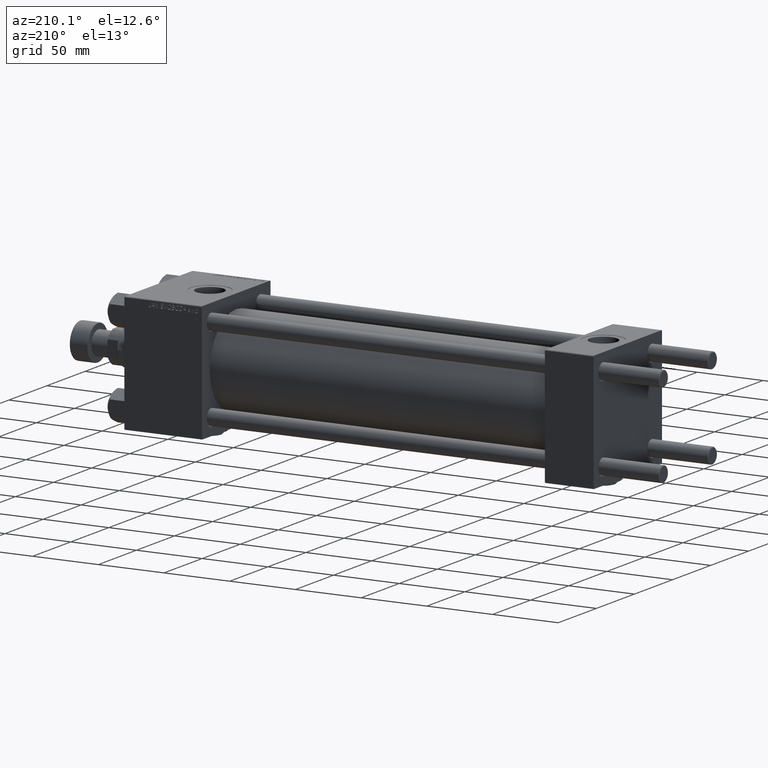
[diagram: clean part render]
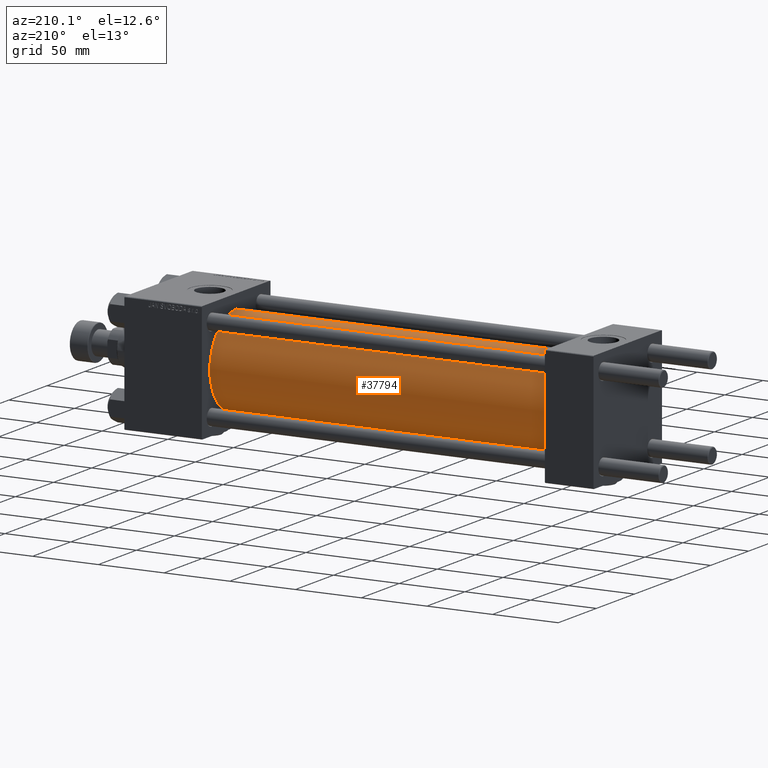
[diagram: same view with one face highlighted and labeled with its STEP entity id]
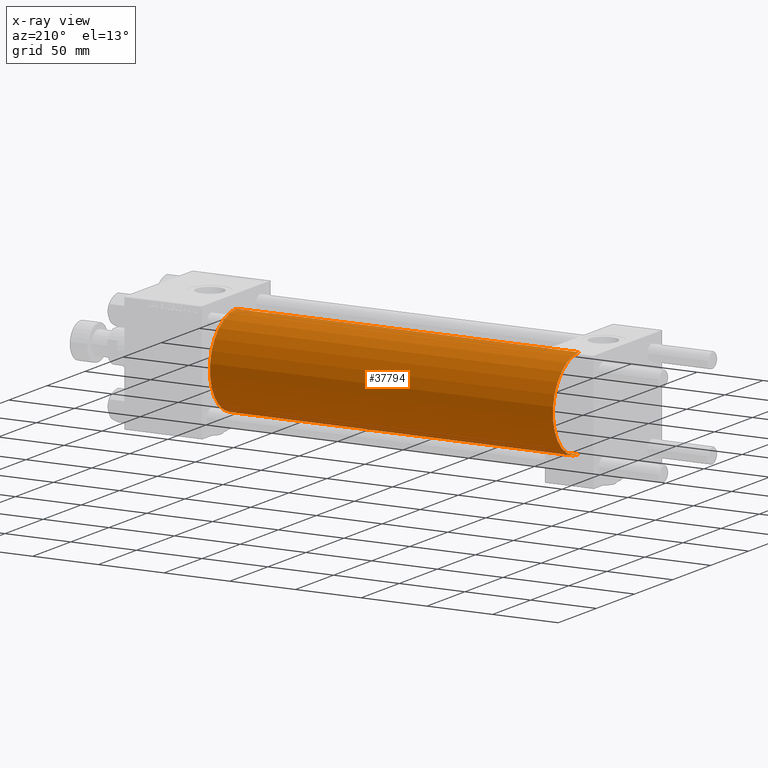
[diagram: x-ray of the same camera — body ghosted, the highlighted face saturated]
A machine part, auxiliary view. The second image highlights one B-rep face of the part: STEP entity #37794.
The next image is the same camera in x-ray: the body ghosted, the highlighted face saturated — about 0% of this face is hidden behind the body in this view.
In plain terms, the highlighted cylindrical surface (partial cylindrical patch) has radius 34.5 mm, axis along (-1, -0, -0).
Its self-contained STEP definition (entity closure, byte-faithful):
#169 = LINE ( 'NONE', #39613, #15886 ) ;
#1970 = VERTEX_POINT ( 'NONE', #14674 ) ;
#2121 = AXIS2_PLACEMENT_3D ( 'NONE', #32935, #41384, #37169 ) ;
#3076 = EDGE_LOOP ( 'NONE', ( #29112, #50961, #16454, #39900 ) ) ;
#4474 = EDGE_CURVE ( 'NONE', #1970, #19683, #45598, .T. ) ;
#4713 = VERTEX_POINT ( 'NONE', #26226 ) ;
#8516 = CARTESIAN_POINT ( 'NONE',  ( 298.0000000000000000, 4.225031457058367344E-15, -34.49999999999999289 ) ) ;
#9697 = DIRECTION ( 'NONE',  ( -1.000000000000000000, -0.000000000000000000, -0.000000000000000000 ) ) ;
#9857 = CARTESIAN_POINT ( 'NONE',  ( 298.0000000000000000, 0.000000000000000000, 0.000000000000000000 ) ) ;
#10118 = FACE_OUTER_BOUND ( 'NONE', #3076, .T. ) ;
#13264 = AXIS2_PLACEMENT_3D ( 'NONE', #28834, #36789, #40504 ) ;
#13680 = VECTOR ( 'NONE', #42678, 1000.000000000000000 ) ;
#14081 = DIRECTION ( 'NONE',  ( 0.000000000000000000, 0.000000000000000000, 1.000000000000000000 ) ) ;
#14674 = CARTESIAN_POINT ( 'NONE',  ( 298.0000000000000000, 0.000000000000000000, 34.49999999999999289 ) ) ;
#15886 = VECTOR ( 'NONE', #9697, 1000.000000000000000 ) ;
#16454 = ORIENTED_EDGE ( 'NONE', *, *, #43587, .T. ) ;
#16843 = EDGE_CURVE ( 'NONE', #48178, #1970, #25109, .T. ) ;
#19683 = VERTEX_POINT ( 'NONE', #52182 ) ;
#21987 = EDGE_CURVE ( 'NONE', #48178, #4713, #169, .T. ) ;
#22542 = CYLINDRICAL_SURFACE ( 'NONE', #28947, 34.49999999999999289 ) ;
#25109 = CIRCLE ( 'NONE', #13264, 34.49999999999999289 ) ;
#26226 = CARTESIAN_POINT ( 'NONE',  ( 36.99999999999997868, 4.225031457058367344E-15, -34.49999999999999289 ) ) ;
#28834 = CARTESIAN_POINT ( 'NONE',  ( 298.0000000000000000, 0.000000000000000000, 0.000000000000000000 ) ) ;
#28947 = AXIS2_PLACEMENT_3D ( 'NONE', #9857, #47118, #14081 ) ;
#29112 = ORIENTED_EDGE ( 'NONE', *, *, #16843, .F. ) ;
#32935 = CARTESIAN_POINT ( 'NONE',  ( 36.99999999999997868, 0.000000000000000000, 0.000000000000000000 ) ) ;
#36789 = DIRECTION ( 'NONE',  ( 1.000000000000000000, 0.000000000000000000, 0.000000000000000000 ) ) ;
#37169 = DIRECTION ( 'NONE',  ( 0.000000000000000000, 0.000000000000000000, 1.000000000000000000 ) ) ;
#37794 = ADVANCED_FACE ( 'NONE', ( #10118 ), #22542, .T. ) ;
#39613 = CARTESIAN_POINT ( 'NONE',  ( 298.0000000000000000, 4.225031457058367344E-15, -34.49999999999999289 ) ) ;
#39900 = ORIENTED_EDGE ( 'NONE', *, *, #4474, .F. ) ;
#40504 = DIRECTION ( 'NONE',  ( 0.000000000000000000, 0.000000000000000000, -1.000000000000000000 ) ) ;
#40969 = CIRCLE ( 'NONE', #2121, 34.49999999999999289 ) ;
#41384 = DIRECTION ( 'NONE',  ( 1.000000000000000000, -0.000000000000000000, 0.000000000000000000 ) ) ;
#42156 = CARTESIAN_POINT ( 'NONE',  ( 298.0000000000000000, 0.000000000000000000, 34.49999999999999289 ) ) ;
#42678 = DIRECTION ( 'NONE',  ( -1.000000000000000000, -0.000000000000000000, -0.000000000000000000 ) ) ;
#43587 = EDGE_CURVE ( 'NONE', #4713, #19683, #40969, .T. ) ;
#45598 = LINE ( 'NONE', #42156, #13680 ) ;
#47118 = DIRECTION ( 'NONE',  ( -1.000000000000000000, -0.000000000000000000, -0.000000000000000000 ) ) ;
#48178 = VERTEX_POINT ( 'NONE', #8516 ) ;
#50961 = ORIENTED_EDGE ( 'NONE', *, *, #21987, .T. ) ;
#52182 = CARTESIAN_POINT ( 'NONE',  ( 36.99999999999997868, 0.000000000000000000, 34.49999999999999289 ) ) ;